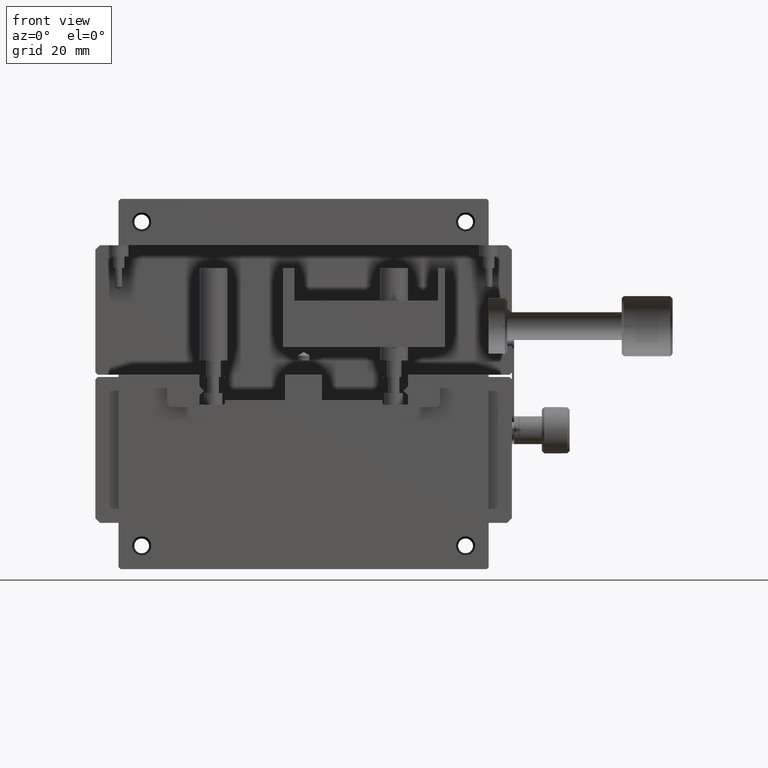
[diagram: clean part render]
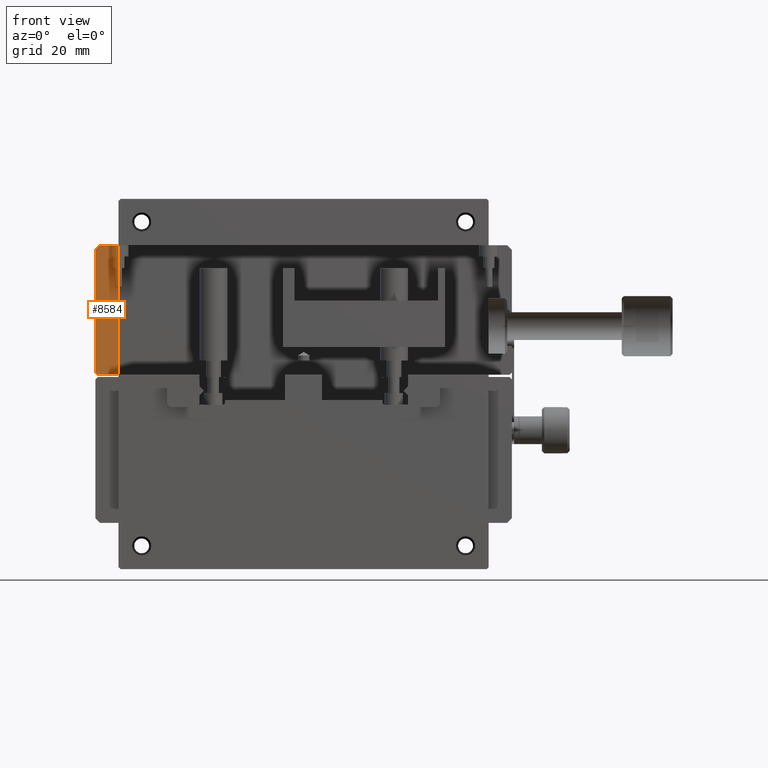
[diagram: same view with one face highlighted and labeled with its STEP entity id]
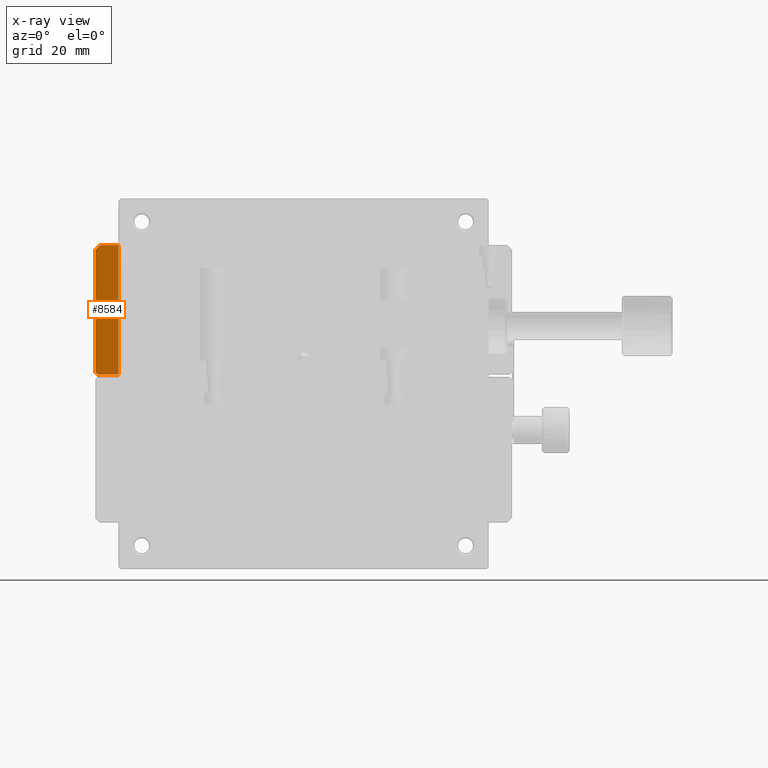
[diagram: x-ray of the same camera — body ghosted, the highlighted face saturated]
A machine part, front view. The second image highlights one B-rep face of the part: STEP entity #8584.
The next image is the same camera in x-ray: the body ghosted, the highlighted face saturated — about 0% of this face is hidden behind the body in this view.
In plain terms, the highlighted planar face has unit normal (0, 1, 0).
Its self-contained STEP definition (entity closure, byte-faithful):
#8 = VERTEX_POINT ( 'NONE', #11799 ) ;
#262 = EDGE_LOOP ( 'NONE', ( #1350, #8853, #2258, #3611, #1366, #4569 ) ) ;
#375 = CARTESIAN_POINT ( 'NONE',  ( -4.500000000000000888, 5.999999999999998224, -38.00000000000000000 ) ) ;
#502 = EDGE_CURVE ( 'NONE', #3197, #3366, #10060, .T. ) ;
#629 = VECTOR ( 'NONE', #4564, 1000.000000000000000 ) ;
#940 = EDGE_CURVE ( 'NONE', #10087, #6546, #5792, .T. ) ;
#1153 = DIRECTION ( 'NONE',  ( 0.7071067811865470176, 0.000000000000000000, -0.7071067811865480168 ) ) ;
#1350 = ORIENTED_EDGE ( 'NONE', *, *, #7625, .F. ) ;
#1366 = ORIENTED_EDGE ( 'NONE', *, *, #5766, .F. ) ;
#1610 = VECTOR ( 'NONE', #8212, 1000.000000000000000 ) ;
#1738 = CARTESIAN_POINT ( 'NONE',  ( -5.000000000000000000, 6.000000000000000000, 0.000000000000000000 ) ) ;
#1955 = PLANE ( 'NONE',  #2584 ) ;
#2025 = LINE ( 'NONE', #2939, #10250 ) ;
#2258 = ORIENTED_EDGE ( 'NONE', *, *, #11543, .F. ) ;
#2584 = AXIS2_PLACEMENT_3D ( 'NONE', #6594, #7553, #3116 ) ;
#2786 = CARTESIAN_POINT ( 'NONE',  ( 0.000000000000000000, 6.000000000000000000, -79.29000000000000625 ) ) ;
#2920 = DIRECTION ( 'NONE',  ( -1.000000000000000000, -0.000000000000000000, 0.000000000000000000 ) ) ;
#2939 = CARTESIAN_POINT ( 'NONE',  ( -5.000000000000000000, 5.999999999999998224, -11.00000000000000000 ) ) ;
#3116 = DIRECTION ( 'NONE',  ( 0.000000000000000000, -0.000000000000000000, 1.000000000000000000 ) ) ;
#3197 = VERTEX_POINT ( 'NONE', #3924 ) ;
#3366 = VERTEX_POINT ( 'NONE', #6407 ) ;
#3611 = ORIENTED_EDGE ( 'NONE', *, *, #502, .T. ) ;
#3688 = EDGE_CURVE ( 'NONE', #8, #8114, #7099, .T. ) ;
#3924 = CARTESIAN_POINT ( 'NONE',  ( -4.999999999999999112, 5.999999999999998224, -37.50000000000000000 ) ) ;
#4183 = CARTESIAN_POINT ( 'NONE',  ( -4.500000000000000888, 5.999999999999998224, -38.00000000000000000 ) ) ;
#4564 = DIRECTION ( 'NONE',  ( -0.000000000000000000, -0.000000000000000000, 1.000000000000000000 ) ) ;
#4569 = ORIENTED_EDGE ( 'NONE', *, *, #3688, .T. ) ;
#4890 = DIRECTION ( 'NONE',  ( -0.7071067811865480168, 0.000000000000000000, -0.7071067811865470176 ) ) ;
#5766 = EDGE_CURVE ( 'NONE', #8, #3366, #2025, .T. ) ;
#5792 = LINE ( 'NONE', #11253, #6645 ) ;
#6036 = CARTESIAN_POINT ( 'NONE',  ( 0.000000000000000000, 6.000000000000000000, -38.00000000000000000 ) ) ;
#6407 = CARTESIAN_POINT ( 'NONE',  ( -4.999999999999999112, 5.999999999999998224, -11.00000000000000000 ) ) ;
#6546 = VERTEX_POINT ( 'NONE', #4183 ) ;
#6594 = CARTESIAN_POINT ( 'NONE',  ( 0.000000000000000000, 6.000000000000000000, 0.000000000000000000 ) ) ;
#6645 = VECTOR ( 'NONE', #2920, 1000.000000000000000 ) ;
#7017 = VECTOR ( 'NONE', #11962, 1000.000000000000000 ) ;
#7099 = LINE ( 'NONE', #10960, #1610 ) ;
#7498 = FACE_OUTER_BOUND ( 'NONE', #262, .T. ) ;
#7522 = VECTOR ( 'NONE', #1153, 1000.000000000000000 ) ;
#7553 = DIRECTION ( 'NONE',  ( 0.000000000000000000, 1.000000000000000000, 0.000000000000000000 ) ) ;
#7625 = EDGE_CURVE ( 'NONE', #10087, #8114, #11119, .T. ) ;
#8114 = VERTEX_POINT ( 'NONE', #10419 ) ;
#8212 = DIRECTION ( 'NONE',  ( 1.000000000000000000, 0.000000000000000000, -0.000000000000000000 ) ) ;
#8584 = ADVANCED_FACE ( 'NONE', ( #7498 ), #1955, .T. ) ;
#8853 = ORIENTED_EDGE ( 'NONE', *, *, #940, .T. ) ;
#9471 = LINE ( 'NONE', #375, #7522 ) ;
#10060 = LINE ( 'NONE', #1738, #7017 ) ;
#10087 = VERTEX_POINT ( 'NONE', #6036 ) ;
#10250 = VECTOR ( 'NONE', #4890, 1000.000000000000000 ) ;
#10419 = CARTESIAN_POINT ( 'NONE',  ( 0.000000000000000000, 5.999999999999999112, -9.999999999999998224 ) ) ;
#10960 = CARTESIAN_POINT ( 'NONE',  ( 0.000000000000000000, 6.000000000000000000, -10.00000000000000000 ) ) ;
#11119 = LINE ( 'NONE', #2786, #629 ) ;
#11253 = CARTESIAN_POINT ( 'NONE',  ( 0.000000000000000000, 6.000000000000000000, -38.00000000000000000 ) ) ;
#11543 = EDGE_CURVE ( 'NONE', #3197, #6546, #9471, .T. ) ;
#11799 = CARTESIAN_POINT ( 'NONE',  ( -4.000000000000000000, 5.999999999999998224, -10.00000000000000000 ) ) ;
#11962 = DIRECTION ( 'NONE',  ( 0.000000000000000000, -0.000000000000000000, 1.000000000000000000 ) ) ;